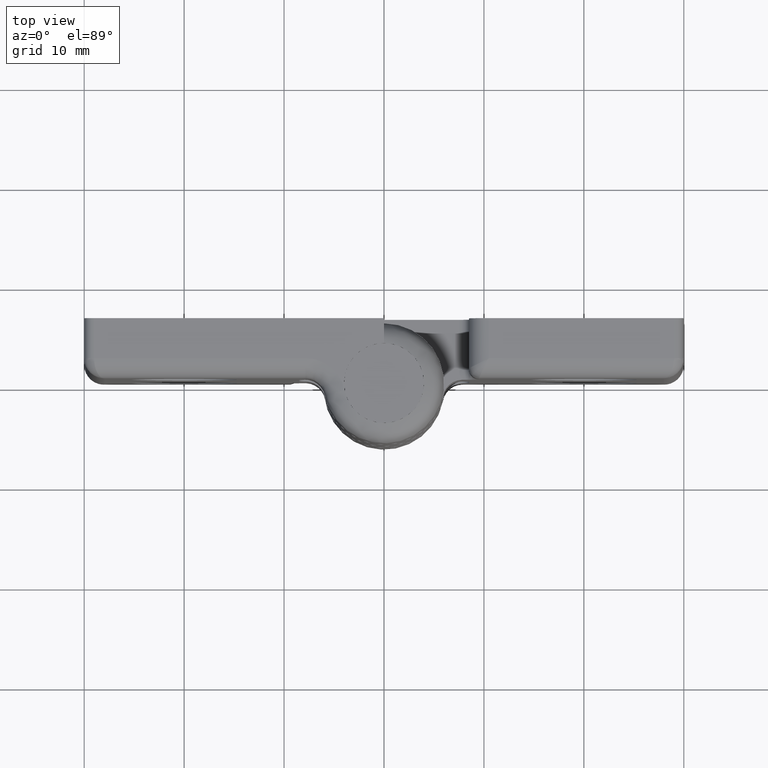
[diagram: clean part render]
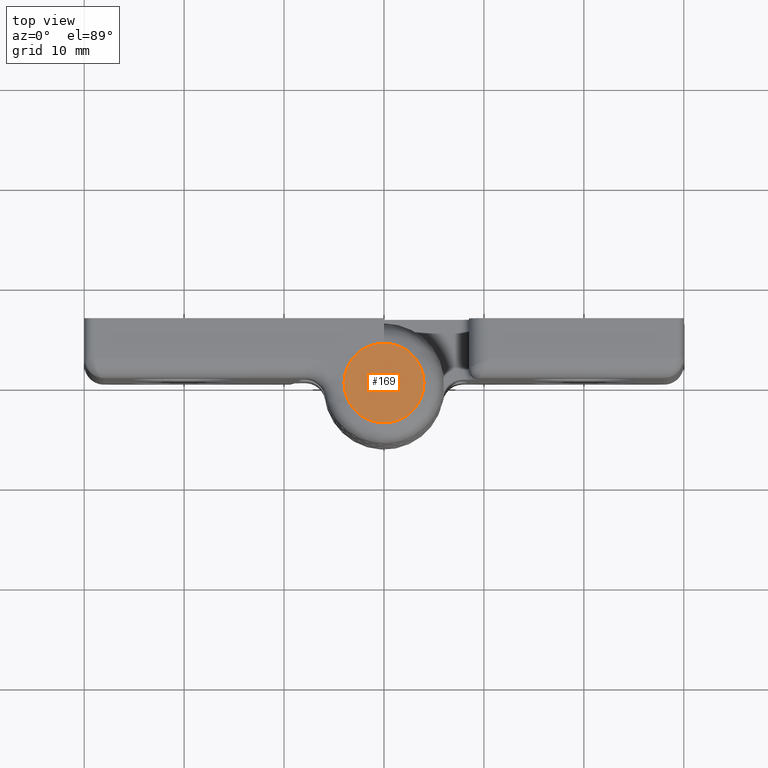
[diagram: same view with one face highlighted and labeled with its STEP entity id]
A machine part, top view. The second image highlights one B-rep face of the part: STEP entity #169.
In plain terms, the highlighted planar face has unit normal (0, 0, -1).
Its self-contained STEP definition (entity closure, byte-faithful):
#169=ADVANCED_FACE('',(#290),#289,.F.);
#289=PLANE('',#1307);
#290=FACE_OUTER_BOUND('',#1308,.T.);
#1304=CARTESIAN_POINT('',(-9.20000000000E+00,-8.31384387633E+00,0.00000000000E+00));
#1305=DIRECTION('',(0.00000000000E+00,0.00000000000E+00,1.00000000000E+00));
#1306=DIRECTION('',(1.00000000000E+00,0.00000000000E+00,0.00000000000E+00));
#1307=AXIS2_PLACEMENT_3D('',#1304,#1305,#1306);
#1308=EDGE_LOOP('',(#2045,#2046,#2047));
#2045=ORIENTED_EDGE('',*,*,#2577,.T.);
#2046=ORIENTED_EDGE('',*,*,#2578,.T.);
#2047=ORIENTED_EDGE('',*,*,#2579,.T.);
#2577=EDGE_CURVE('',#2897,#2898,#2899,.T.);
#2578=EDGE_CURVE('',#2898,#2905,#2906,.T.);
#2579=EDGE_CURVE('',#2905,#2897,#2912,.T.);
#2897=VERTEX_POINT('',#4653);
#2898=VERTEX_POINT('',#4654);
#2899=CIRCLE('',#4658,4.00000000000E+00);
#2905=VERTEX_POINT('',#4659);
#2906=CIRCLE('',#4663,4.00000000000E+00);
#2912=CIRCLE('',#4667,4.00000000000E+00);
#4653=CARTESIAN_POINT('',(4.00000000000E+00,-3.33066907388E-16,6.72095706858E-15));
#4654=CARTESIAN_POINT('',(4.72823445280E-01,-3.97195644357E+00,3.70202940214E-16));
#4655=CARTESIAN_POINT('',(-1.77635683940E-15,-1.33226762955E-15,5.53609939406E-16));
#4656=DIRECTION('',(1.54183678229E-15,2.29716410947E-16,-1.00000000000E+00));
#4657=DIRECTION('',(1.00000000000E+00,-9.71445146547E-17,1.54183678229E-15));
#4658=AXIS2_PLACEMENT_3D('',#4655,#4656,#4657);
#4659=CARTESIAN_POINT('',(-4.72135486076E-01,3.97203827811E+00,7.38096458143E-16));
#4660=CARTESIAN_POINT('',(-1.77635683940E-15,-1.33226762955E-15,5.53609939406E-16));
#4661=DIRECTION('',(1.54183678229E-15,2.29716410947E-16,-1.00000000000E+00));
#4662=DIRECTION('',(1.00000000000E+00,-9.71445146547E-17,1.54183678229E-15));
#4663=AXIS2_PLACEMENT_3D('',#4660,#4661,#4662);
#4664=CARTESIAN_POINT('',(-1.77635683940E-15,-1.33226762955E-15,5.53609939406E-16));
#4665=DIRECTION('',(1.54183678229E-15,2.29716410947E-16,-1.00000000000E+00));
#4666=DIRECTION('',(1.00000000000E+00,-9.71445146547E-17,1.54183678229E-15));
#4667=AXIS2_PLACEMENT_3D('',#4664,#4665,#4666);